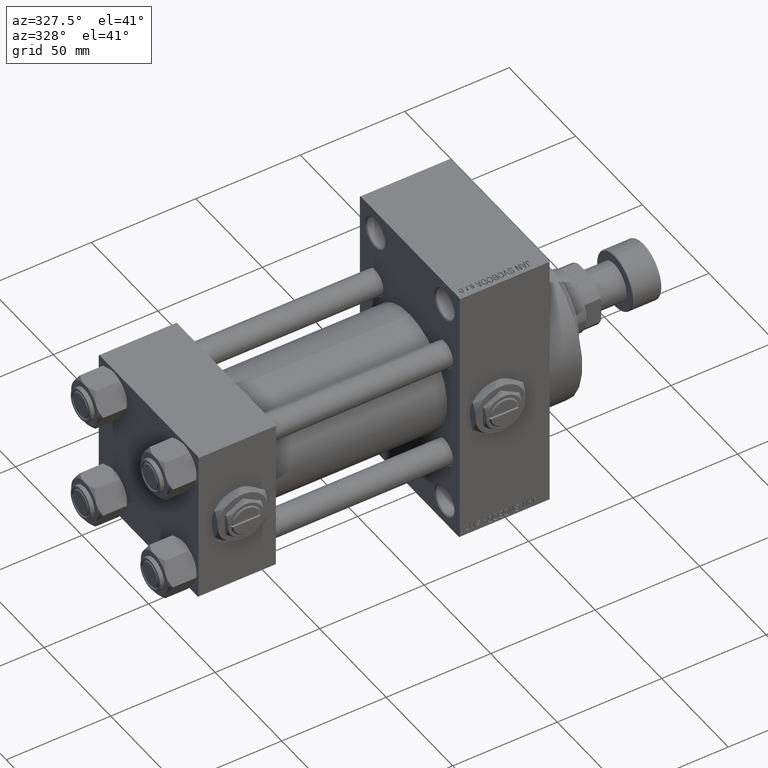
[diagram: clean part render]
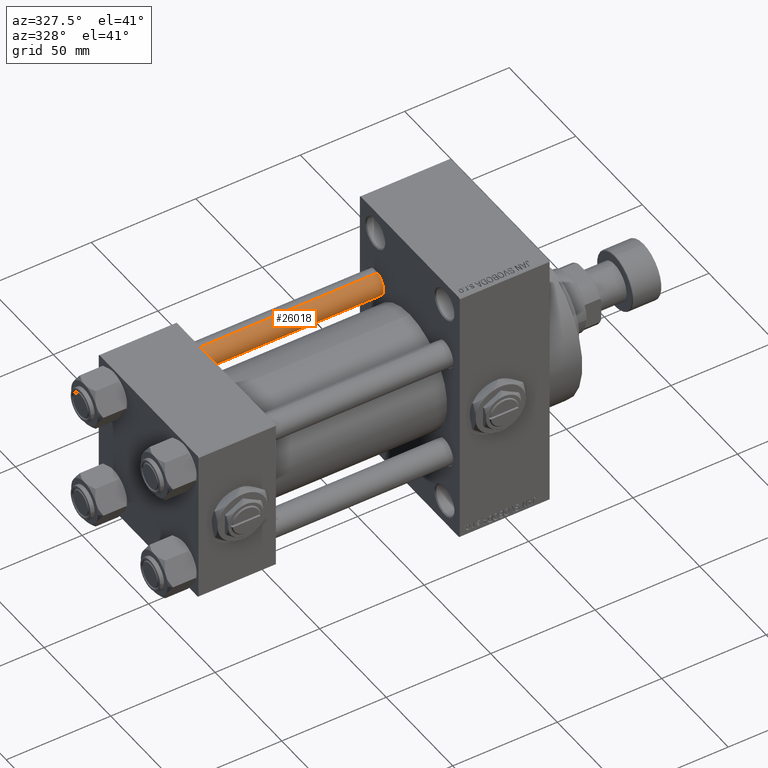
[diagram: same view with one face highlighted and labeled with its STEP entity id]
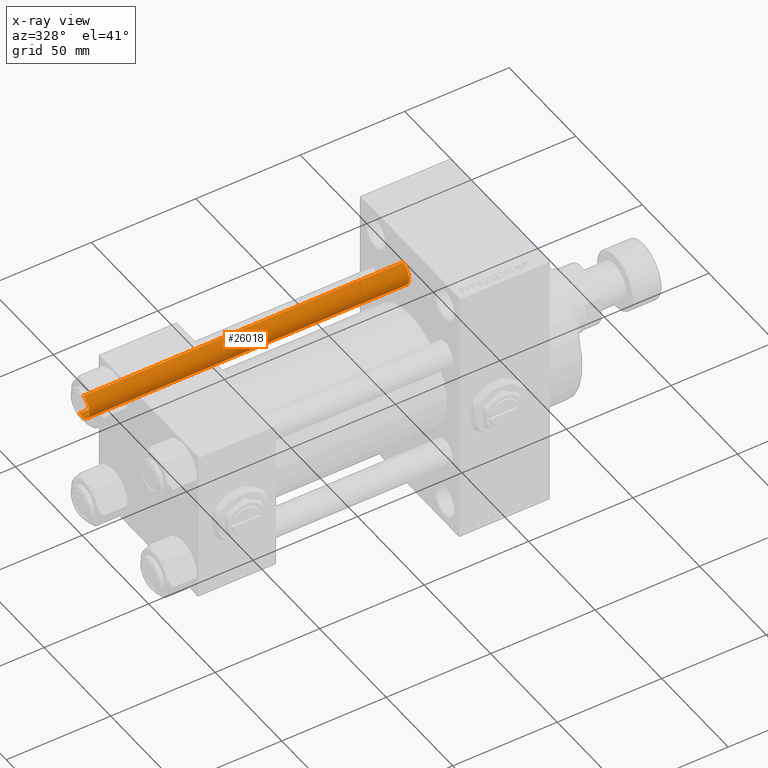
[diagram: x-ray of the same camera — body ghosted, the highlighted face saturated]
A machine part, auxiliary view. The second image highlights one B-rep face of the part: STEP entity #26018.
The next image is the same camera in x-ray: the body ghosted, the highlighted face saturated — about 0% of this face is hidden behind the body in this view.
In plain terms, the highlighted cylindrical surface (edge-blend (fillet) strip) has radius 6 mm, axis along (-1, -0, 0).
Its self-contained STEP definition (entity closure, byte-faithful):
#858 = ORIENTED_EDGE ( 'NONE', *, *, #23493, .T. ) ;
#2339 = CIRCLE ( 'NONE', #12753, 6.000000000000000888 ) ;
#2560 = DIRECTION ( 'NONE',  ( -0.000000000000000000, -0.000000000000000000, -1.000000000000000000 ) ) ;
#2784 = CARTESIAN_POINT ( 'NONE',  ( -6.000000000000000888, 0.000000000000000000, 153.5000000000000000 ) ) ;
#3156 = VERTEX_POINT ( 'NONE', #9412 ) ;
#4800 = DIRECTION ( 'NONE',  ( 1.000000000000000000, 0.000000000000000000, 0.000000000000000000 ) ) ;
#5482 = LINE ( 'NONE', #9498, #48405 ) ;
#5575 = CARTESIAN_POINT ( 'NONE',  ( -6.000000000000000888, 0.000000000000000000, 0.5000000000000281997 ) ) ;
#6011 = ORIENTED_EDGE ( 'NONE', *, *, #36064, .T. ) ;
#9412 = CARTESIAN_POINT ( 'NONE',  ( 6.000000000000000888, 7.347880794884120722E-16, 153.5000000000000000 ) ) ;
#9498 = CARTESIAN_POINT ( 'NONE',  ( 6.000000000000000888, 7.347880794884120722E-16, 154.0000000000000000 ) ) ;
#9518 = DIRECTION ( 'NONE',  ( -0.000000000000000000, -0.000000000000000000, 1.000000000000000000 ) ) ;
#11120 = DIRECTION ( 'NONE',  ( -0.000000000000000000, -0.000000000000000000, -1.000000000000000000 ) ) ;
#12575 = CARTESIAN_POINT ( 'NONE',  ( 6.000000000000000888, 7.347880794884120722E-16, 0.5000000000000281997 ) ) ;
#12753 = AXIS2_PLACEMENT_3D ( 'NONE', #43980, #9518, #48007 ) ;
#13937 = AXIS2_PLACEMENT_3D ( 'NONE', #47074, #43048, #4800 ) ;
#15170 = AXIS2_PLACEMENT_3D ( 'NONE', #45579, #11120, #19162 ) ;
#16614 = VERTEX_POINT ( 'NONE', #12575 ) ;
#17054 = DIRECTION ( 'NONE',  ( -0.000000000000000000, -0.000000000000000000, -1.000000000000000000 ) ) ;
#19162 = DIRECTION ( 'NONE',  ( -1.000000000000000000, 0.000000000000000000, 0.000000000000000000 ) ) ;
#23170 = VERTEX_POINT ( 'NONE', #2784 ) ;
#23493 = EDGE_CURVE ( 'NONE', #46792, #16614, #2339, .T. ) ;
#25319 = ORIENTED_EDGE ( 'NONE', *, *, #34535, .F. ) ;
#26018 = ADVANCED_FACE ( 'NONE', ( #30256 ), #45340, .T. ) ;
#29496 = CARTESIAN_POINT ( 'NONE',  ( -6.000000000000000888, 0.000000000000000000, 154.0000000000000000 ) ) ;
#29839 = EDGE_CURVE ( 'NONE', #23170, #46792, #33511, .T. ) ;
#30256 = FACE_OUTER_BOUND ( 'NONE', #32065, .T. ) ;
#32065 = EDGE_LOOP ( 'NONE', ( #25319, #6011, #39587, #858 ) ) ;
#33511 = LINE ( 'NONE', #29496, #38567 ) ;
#34535 = EDGE_CURVE ( 'NONE', #3156, #16614, #5482, .T. ) ;
#36064 = EDGE_CURVE ( 'NONE', #3156, #23170, #46085, .T. ) ;
#38567 = VECTOR ( 'NONE', #2560, 1000.000000000000000 ) ;
#39587 = ORIENTED_EDGE ( 'NONE', *, *, #29839, .T. ) ;
#43048 = DIRECTION ( 'NONE',  ( 0.000000000000000000, 0.000000000000000000, -1.000000000000000000 ) ) ;
#43980 = CARTESIAN_POINT ( 'NONE',  ( 0.000000000000000000, 0.000000000000000000, 0.5000000000000281997 ) ) ;
#45340 = CYLINDRICAL_SURFACE ( 'NONE', #15170, 6.000000000000000888 ) ;
#45579 = CARTESIAN_POINT ( 'NONE',  ( 0.000000000000000000, 0.000000000000000000, 154.0000000000000000 ) ) ;
#46085 = CIRCLE ( 'NONE', #13937, 6.000000000000000888 ) ;
#46792 = VERTEX_POINT ( 'NONE', #5575 ) ;
#47074 = CARTESIAN_POINT ( 'NONE',  ( 0.000000000000000000, 0.000000000000000000, 153.5000000000000000 ) ) ;
#48007 = DIRECTION ( 'NONE',  ( 1.000000000000000000, 0.000000000000000000, 0.000000000000000000 ) ) ;
#48405 = VECTOR ( 'NONE', #17054, 1000.000000000000000 ) ;